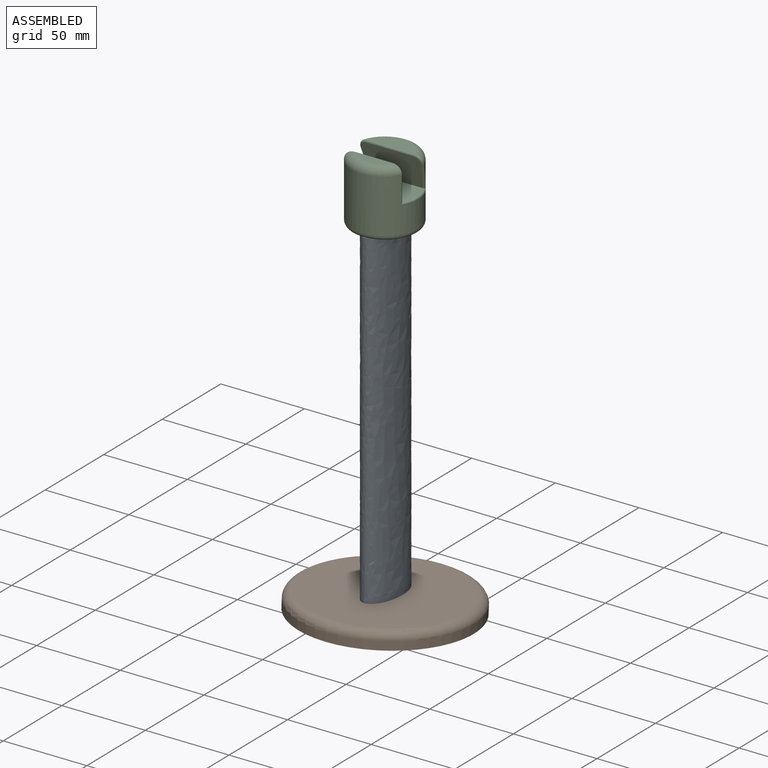
[diagram: assembled view]
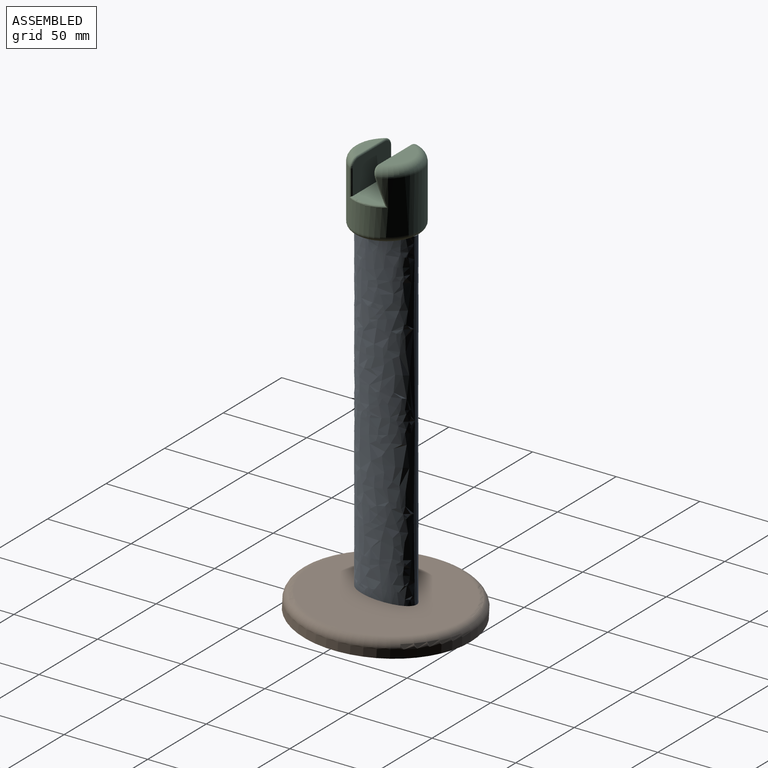
[diagram: assembled view, second angle]
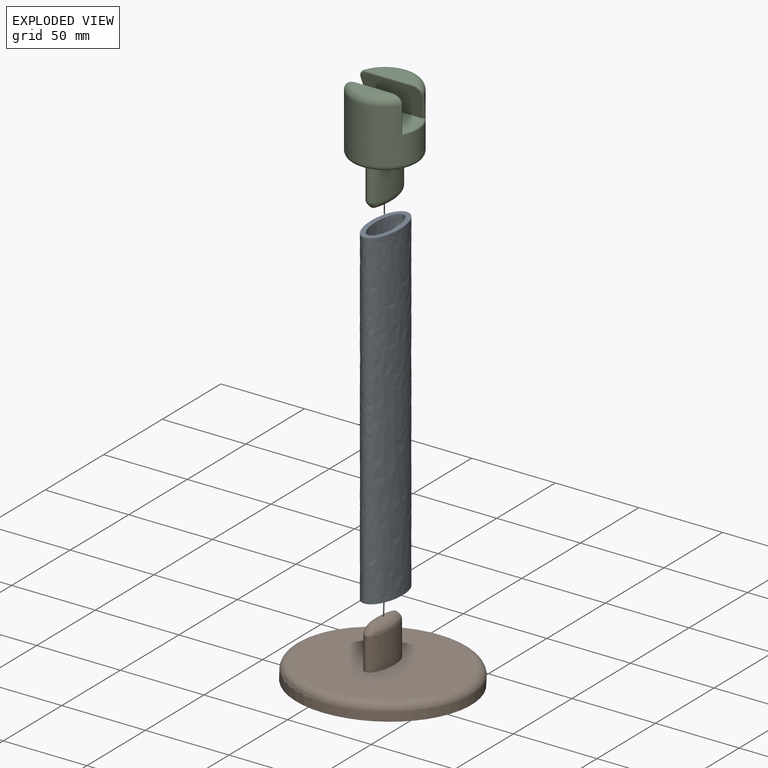
[diagram: exploded view]
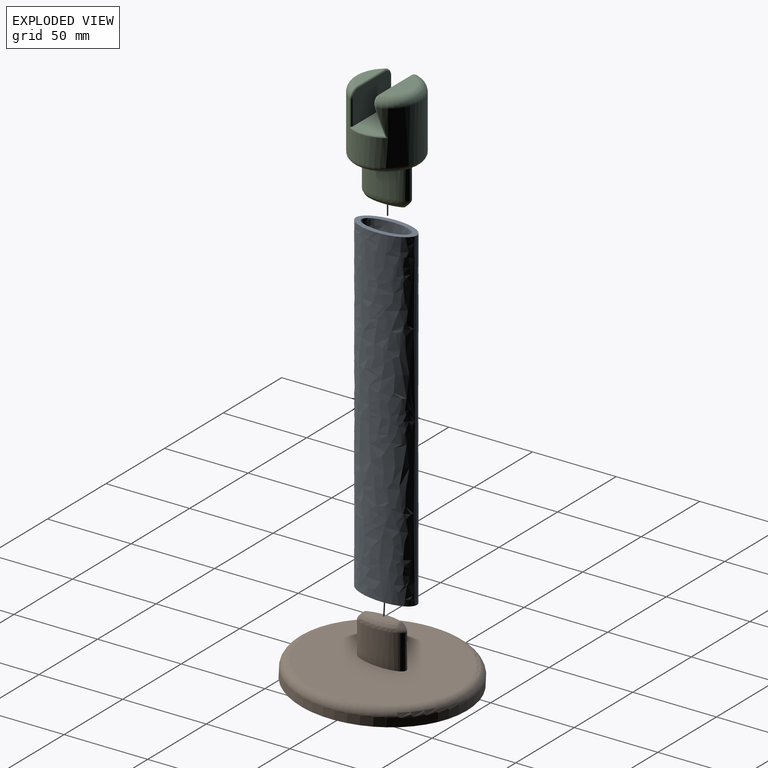
[diagram: exploded view, second angle]
ASSEMBLY  parts=3 mates=2
PART A: 4 faces, bbox 17.2x36.5x199.7 mm
  f0: extruded ~199.51x29.5mm, area 13425.8mm2, adj f2,f3
  f1: extruded ~199.69x36.51mm, area 17317.6mm2, adj f2,f3
  f2: plane 36.51x17.21mm, normal (0,0,1), area 227.2mm2, adj f0,f1
  f3: plane 36.51x17.22mm, normal (0,-0.05,-1), area 227.4mm2, adj f0,f1
PART B: 10 faces, bbox 110x110x35.6 mm
  f0: cylinder r=50.84mm len=101.67mm, axis (0,0,-1), area 1597mm2, adj f2,f3
  f1: plane 91.67x91.67mm, normal (0,0,1), area 6347.3mm2, adj f3,f4
  f2: plane 101.67x101.67mm, normal (0,0,-1), area 8118.6mm2, adj f0
  f3: torus R=45.84mm, axis (0,0,1), area 2419mm2, adj f0,f1
  f4: extruded ~30.05x22.22mm, area 1319.5mm2, adj f1,f6,f7,f8,f9
  f5: plane 11.17x1mm, normal (-0.05,0,1), area 7.5mm2, adj f7,f8
  f6: bspline ~8.65x6.59mm, area 52.7mm2, adj f4,f7,f8
  f7: bspline ~24.14x6.79mm, area 136.1mm2, adj f4,f5,f6,f9
  f8: bspline ~24.04x6.77mm, area 135.9mm2, adj f4,f5,f6,f9
  f9: bspline ~9.16x6.59mm, area 38.8mm2, adj f4,f7,f8
PART C: 28 faces, bbox 43.3x43.3x68.1 mm
  f0: cylinder r=20mm len=40mm, axis (0,0,-1), area 3349.2mm2, adj f13,f14,f15,f17,f19,f22,f24,f26
  f1: plane 22.36x5mm, normal (0,0,1), area 77.4mm2, adj f13,f18
  f2: extruded ~29x20mm, area 1321.3mm2, adj f4,f5,f6,f7,f9
  f3: plane 11.18x1mm, normal (0,0,-1), area 7.5mm2, adj f5,f6
  f4: bspline ~8.91x6.59mm, area 38.8mm2, adj f2,f5,f6
  f5: bspline ~23.88x6.78mm, area 136mm2, adj f2,f3,f4,f7
  f6: bspline ~23.54x6.74mm, area 135.9mm2, adj f2,f3,f4,f7
  f7: bspline ~8.91x6.59mm, area 52.8mm2, adj f2,f5,f6
  f8: plane 28.03x9.66mm, normal (0,0,1), area 196.6mm2, adj f14,f23
  f9: plane 34x34mm, normal (0,0,-1), area 657.4mm2, adj f2,f27
  f10: plane 38x19.3mm, normal (0,0,1), area 690.5mm2, adj f11,f12,f15,f17,f19,f22,f24,f26
  f11: plane 32.31x19mm, normal (0,1,0), area 605.7mm2, adj f10,f15,f16,f18,f20,f22
  f12: plane 35.72x18.71mm, normal (0,-0.96,-0.29), area 659.4mm2, adj f10,f19,f21,f23,f25,f26
  f13: torus R=15mm, axis (0,0,1), area 266.5mm2, adj f0,f1,f16,f20
  f14: torus R=15mm, axis (0,0,1), area 352.8mm2, adj f0,f8,f21,f25
  f15: cylinder r=1mm len=16mm, axis (0,0,-1), area 32.7mm2, adj f0,f10,f11,f16,f17
  f16: bspline ~7.79x6.27mm, area 15.8mm2, adj f11,f13,f15,f18
  f17: torus R=19mm, axis (0,0,1), area 34.9mm2, adj f0,f10,f15,f19
  f18: cylinder r=1mm len=22.36mm, axis (-1,0,0), area 35.1mm2, adj f1,f11,f16,f20
  f19: bspline ~27.75x9.71mm, area 32.7mm2, adj f0,f10,f12,f17,f21
  f20: bspline ~7.79x6.27mm, area 15.8mm2, adj f11,f13,f18,f22
  f21: bspline ~6.67x6.65mm, area 14.9mm2, adj f12,f14,f19,f23
  f22: cylinder r=1mm len=16mm, axis (0,0,-1), area 32.7mm2, adj f0,f10,f11,f20,f24
  f23: cylinder r=1mm len=28.03mm, axis (-1,0,0), area 52.2mm2, adj f8,f12,f21,f25
  f24: torus R=19mm, axis (0,0,1), area 34.9mm2, adj f0,f10,f22,f26
  f25: bspline ~6.68x6.65mm, area 14.9mm2, adj f12,f14,f23,f26
  f26: bspline ~27.75x9.71mm, area 32.7mm2, adj f0,f10,f12,f24,f25
  f27: torus R=17mm, axis (0,0,1), area 559.9mm2, adj f0,f9
PLACE A t=(-28.35,2.82,-71.22)mm fixed
PLACE B rot(axis=(-0.03,0.03,1),90deg) t=(-28.35,2.31,-79.73)mm
PLACE C t=(-28.85,2.83,103.8)mm
MATE slider C.f3 <-> A.f2  axis (0,0,1) through (-28.35,2.82,103.8)mm
MATE slider B.f0 <-> A.f3  axis (0,0.05,1) through (-28.35,2.83,-69.75)mm
